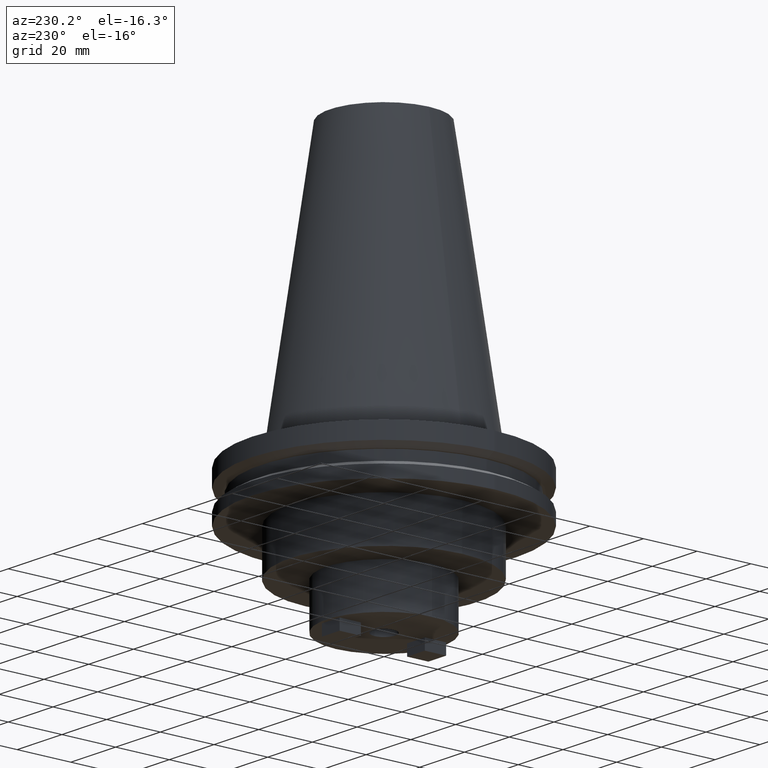
[diagram: clean part render]
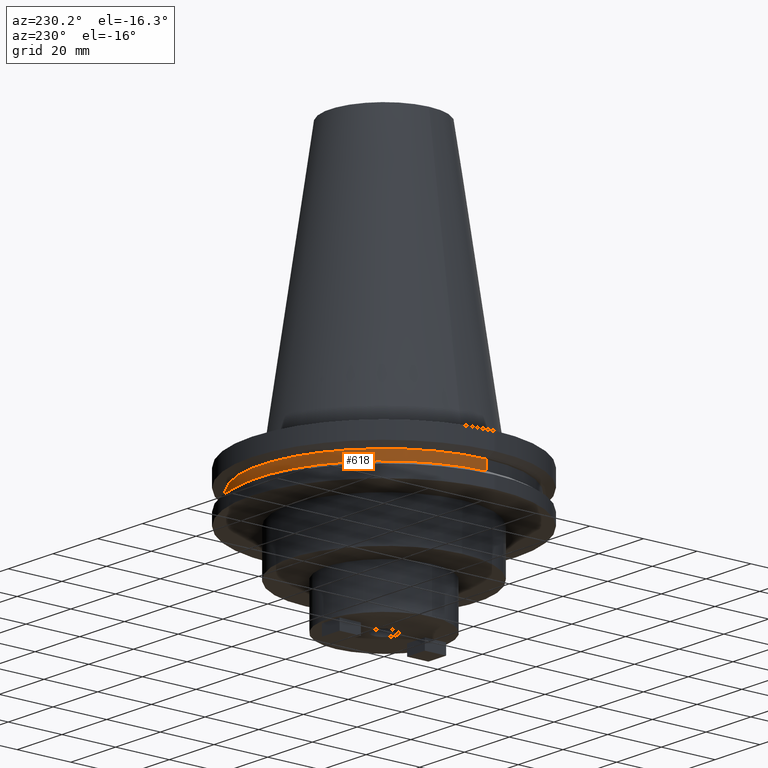
[diagram: same view with one face highlighted and labeled with its STEP entity id]
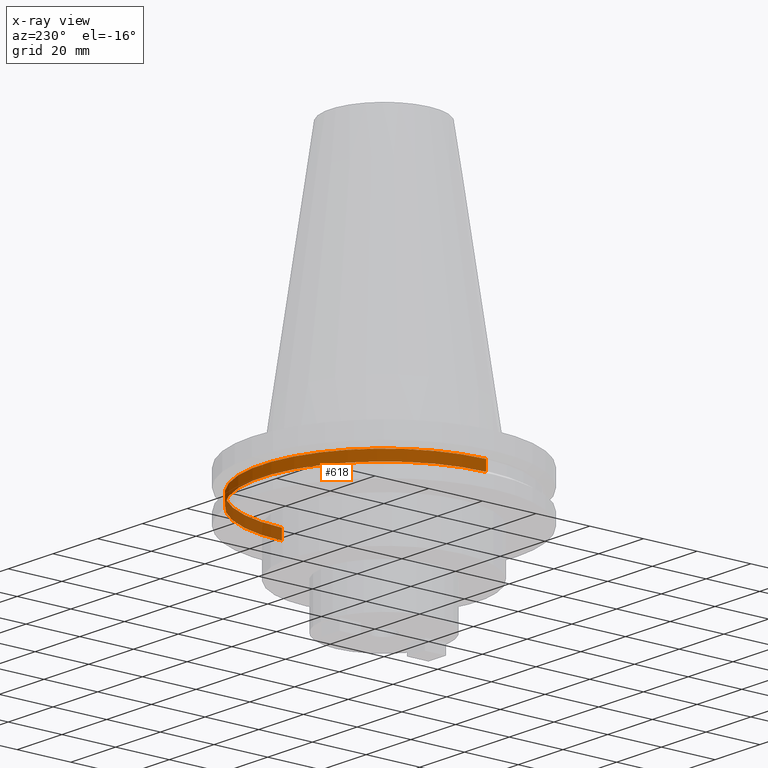
[diagram: x-ray of the same camera — body ghosted, the highlighted face saturated]
A machine part, auxiliary view. The second image highlights one B-rep face of the part: STEP entity #618.
The next image is the same camera in x-ray: the body ghosted, the highlighted face saturated — about 17% of this face is hidden behind the body in this view.
In plain terms, the highlighted cylindrical surface (partial cylindrical patch) has radius 45.645 mm, axis along (-0, -0, 1).
Its self-contained STEP definition (entity closure, byte-faithful):
#27 = AXIS2_PLACEMENT_3D ( 'NONE', #587, #503, #929 ) ;
#81 = CIRCLE ( 'NONE', #410, 45.64500000000000313 ) ;
#126 = CIRCLE ( 'NONE', #286, 45.64500000000000313 ) ;
#139 = LINE ( 'NONE', #474, #616 ) ;
#178 = CARTESIAN_POINT ( 'NONE',  ( 0.000000000000000000, 0.000000000000000000, -13.05499999999999794 ) ) ;
#228 = CARTESIAN_POINT ( 'NONE',  ( 0.000000000000000000, 0.000000000000000000, -9.204999999999991189 ) ) ;
#280 = EDGE_CURVE ( 'NONE', #1064, #1027, #81, .T. ) ;
#286 = AXIS2_PLACEMENT_3D ( 'NONE', #228, #812, #640 ) ;
#321 = CARTESIAN_POINT ( 'NONE',  ( -45.64500000000000313, 5.589900314708094957E-15, -9.204999999999991189 ) ) ;
#346 = FACE_OUTER_BOUND ( 'NONE', #900, .T. ) ;
#410 = AXIS2_PLACEMENT_3D ( 'NONE', #178, #975, #971 ) ;
#421 = VERTEX_POINT ( 'NONE', #720 ) ;
#474 = CARTESIAN_POINT ( 'NONE',  ( -45.64500000000000313, 5.589900314708094957E-15, 101.5999999999999943 ) ) ;
#503 = DIRECTION ( 'NONE',  ( -0.000000000000000000, -0.000000000000000000, 1.000000000000000000 ) ) ;
#516 = VERTEX_POINT ( 'NONE', #321 ) ;
#528 = EDGE_CURVE ( 'NONE', #1027, #516, #139, .T. ) ;
#558 = ORIENTED_EDGE ( 'NONE', *, *, #948, .F. ) ;
#587 = CARTESIAN_POINT ( 'NONE',  ( 0.000000000000000000, 0.000000000000000000, 101.5999999999999943 ) ) ;
#607 = CYLINDRICAL_SURFACE ( 'NONE', #27, 45.64500000000000313 ) ;
#616 = VECTOR ( 'NONE', #817, 1000.000000000000000 ) ;
#618 = ADVANCED_FACE ( 'NONE', ( #346 ), #607, .T. ) ;
#640 = DIRECTION ( 'NONE',  ( 1.000000000000000000, 0.000000000000000000, 0.000000000000000000 ) ) ;
#712 = DIRECTION ( 'NONE',  ( -0.000000000000000000, -0.000000000000000000, 1.000000000000000000 ) ) ;
#720 = CARTESIAN_POINT ( 'NONE',  ( 45.64500000000000313, 0.000000000000000000, -9.204999999999991189 ) ) ;
#729 = ORIENTED_EDGE ( 'NONE', *, *, #794, .F. ) ;
#794 = EDGE_CURVE ( 'NONE', #1064, #421, #953, .T. ) ;
#805 = CARTESIAN_POINT ( 'NONE',  ( 45.64500000000000313, 0.000000000000000000, 101.5999999999999943 ) ) ;
#812 = DIRECTION ( 'NONE',  ( -0.000000000000000000, -0.000000000000000000, 1.000000000000000000 ) ) ;
#817 = DIRECTION ( 'NONE',  ( -0.000000000000000000, -0.000000000000000000, 1.000000000000000000 ) ) ;
#900 = EDGE_LOOP ( 'NONE', ( #952, #923, #558, #729 ) ) ;
#923 = ORIENTED_EDGE ( 'NONE', *, *, #528, .T. ) ;
#929 = DIRECTION ( 'NONE',  ( 1.000000000000000000, 0.000000000000000000, 0.000000000000000000 ) ) ;
#940 = CARTESIAN_POINT ( 'NONE',  ( 45.64500000000000313, 0.000000000000000000, -13.05499999999999794 ) ) ;
#948 = EDGE_CURVE ( 'NONE', #421, #516, #126, .T. ) ;
#952 = ORIENTED_EDGE ( 'NONE', *, *, #280, .T. ) ;
#953 = LINE ( 'NONE', #805, #1032 ) ;
#971 = DIRECTION ( 'NONE',  ( 1.000000000000000000, 0.000000000000000000, 0.000000000000000000 ) ) ;
#975 = DIRECTION ( 'NONE',  ( -0.000000000000000000, -0.000000000000000000, 1.000000000000000000 ) ) ;
#1027 = VERTEX_POINT ( 'NONE', #1086 ) ;
#1032 = VECTOR ( 'NONE', #712, 1000.000000000000000 ) ;
#1064 = VERTEX_POINT ( 'NONE', #940 ) ;
#1086 = CARTESIAN_POINT ( 'NONE',  ( -45.64500000000000313, 5.589900314708094957E-15, -13.05499999999999794 ) ) ;